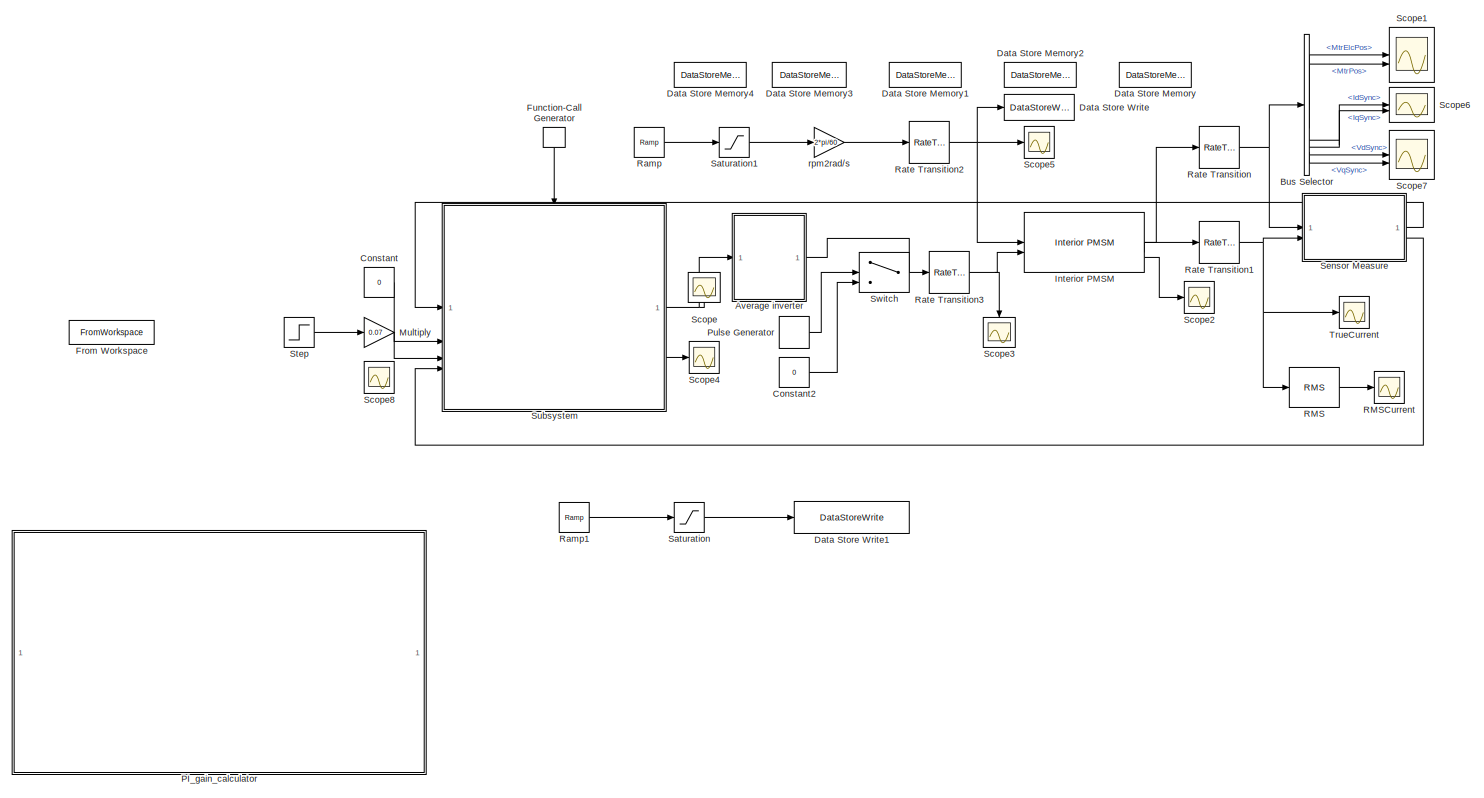
[diagram: root canvas - part 1/1, most of the canvas]
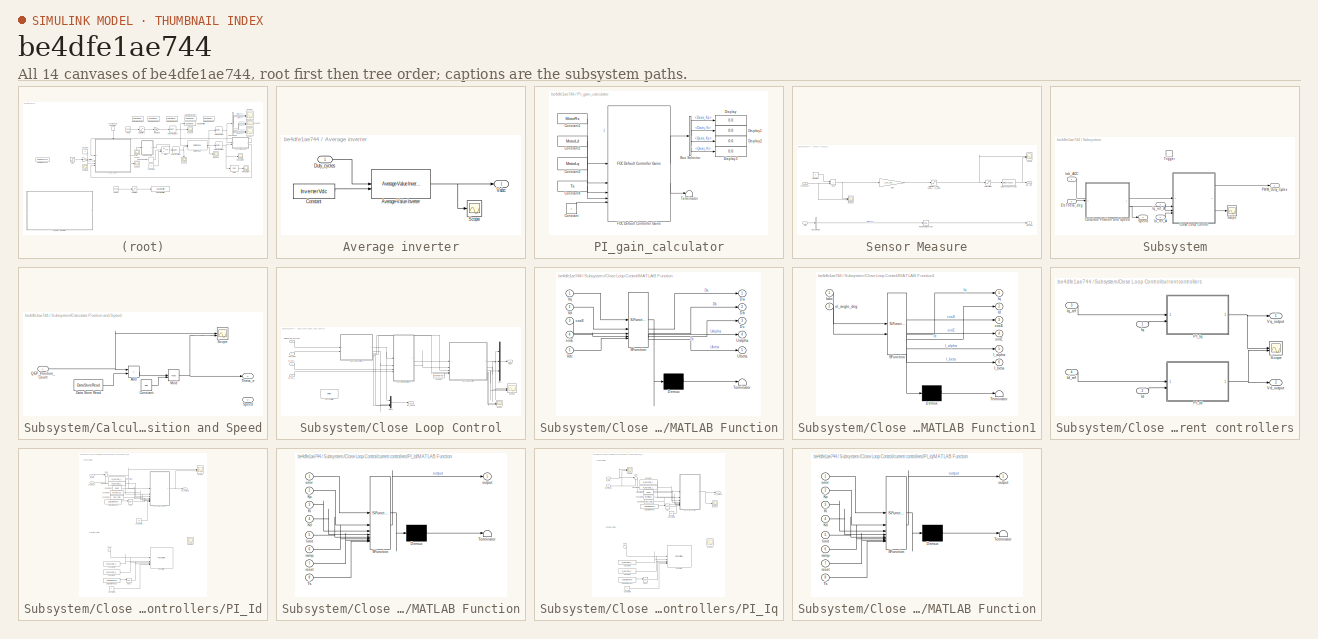
[diagram: thumbnail index - all 14 canvases of the model, root first then tree order]
MODEL slx_be4dfe1ae744
KIND model
CONFIG AbsTol = auto
CONFIG EnableMultiTasking = off
CONFIG FixedStep = auto
CONFIG MaxStep = auto
CONFIG MinStep = auto
CONFIG RelTol = 1e-3
CONFIG SampleTimeConstraint = Unconstrained
CONFIG SolverName = VariableStepAuto
CONFIG StartTime = 0.0
CONFIG StopTime = 5
WORKSPACE source: mxarray member
WORKSPACE CT_AmpersPerLSB = 0.0515718
WORKSPACE InverterVdc = 440
WORKSPACE Max_ADC_CNT = 4096
WORKSPACE MotorBaseCurrent = 70
WORKSPACE MotorKe = 43.834
WORKSPACE MotorLd = 0.000222
WORKSPACE MotorLq = 0.000355
WORKSPACE MotorPoles = 4
WORKSPACE MotorRs = 0.126
WORKSPACE PID_ramp = 1000
WORKSPACE PI_params_idKi = 1.5
WORKSPACE PI_params_idKp = 1.92
WORKSPACE PI_params_iqKi = 1.5
WORKSPACE PI_params_iqKp = 2.4
WORKSPACE Ts = 4.34782608696e-05
BLOCK [SubSystem] Average inverter
BLOCK [Reference] Average inverter/Average-Value Inverter  REF=mcbplantlib/Average-Value Inverter
  LibrarySourceBlock = mcblib/Electrical Systems/Inverters/Average-Value Inverter
  SourceBlock = mcbplantlib/Average-Value Inverter
  SourceType = Average Value Inverter
BLOCK [Constant] Average inverter/Constant
  Value = InverterVdc
BLOCK [Inport] Average inverter/Duty_cycles
BLOCK [Scope] Average inverter/Scope
  ActiveDisplayYMaximum = 350.5718291969751
  ActiveDisplayYMinimum = -313.23796592607141
  DataLoggingVariableName = ScopeData6
  Floating = off
  GraphicalSettings = {"AxesScalingProperties":{"AlignXAxis":"Center","AlignYAxis":"Center","AutoScaleXAxisLimits":false,"AxesScaling":"Manual","AxesScalingNumUpdates":10,"ExpandOnly":true,"ScaleAxesLimitsAtStop":false,"XAxisDataRange":100,"YAxisDataRange":80},"DisplayProperties":{"ColorOrder":["auto","auto","auto","auto","auto","auto","auto","auto","auto","auto","auto","auto","auto","auto","auto","auto","auto","auto",...<+2282ch>
  MultipleDisplayCache = [{"MaxYLimMag":301.12122860835427,"MaxYLimReal":350.5718291969751,"MinYLimMag":0,"MinYLimReal":-313.23796592607141,"PlotAsMagnitudePhase":false,"ShowGrid":true,"ShowLegend":false,"Title":"%<SignalLabel>","YLabel":""}]
  NumInputPorts = 1
  ScopeFrameLocation = window
  WasSavedAsWebScope = on
  WindowPosition = [1.000000,1.000000,1536.000000,937.000000,]
BLOCK [Outport] Average inverter/Vabc
BLOCK [BusSelector] Bus Selector
  OutputSignals = MtrElcPos,MtrPos,IdSync,IqSync,VdSync,VqSync
BLOCK [Constant] Constant
  Value = 0
BLOCK [Constant] Constant2
  Value = 0
BLOCK [DataStoreMemory] Data Store Memory
  DataStoreName = Enable
  InitialValue = true
  OutDataTypeStr = boolean
  ShowAdditionalParam = off
  WriteAfterWriteMsg = warning
BLOCK [DataStoreMemory] Data Store Memory1
  DataStoreName = IaOffset
  OutDataTypeStr = boolean
  ShowAdditionalParam = off
  WriteAfterWriteMsg = warning
BLOCK [DataStoreMemory] Data Store Memory2
  DataStoreName = IbOffset
  OutDataTypeStr = boolean
  ShowAdditionalParam = off
  WriteAfterWriteMsg = warning
BLOCK [DataStoreMemory] Data Store Memory3
  DataStoreName = zero_angle_offset
  InitialValue = 36
  ShowAdditionalParam = off
  WriteAfterWriteMsg = warning
BLOCK [DataStoreMemory] Data Store Memory4
  DataLogging = on
  DataStoreName = motorSpeed
  ShowAdditionalParam = off
  WriteAfterWriteMsg = warning
BLOCK [DataStoreWrite] Data Store Write
  DataStoreName = motorSpeed
  IndexOptions = Index vector (dialog)
  Indices = 1
  OutputSizes = 1
BLOCK [DataStoreWrite] Data Store Write1
  Commented = on
  DataStoreName = zero_angle_offset
  IndexOptions = Index vector (dialog)
  Indices = 1
  OutputSizes = 1
BLOCK [FromWorkspace] From Workspace
  SampleTime = 0.001
  VariableName = [LogFile_SkidPadHiL_TCon_TCoff_0825.Time LogFile_SkidPadHiL_TCon_TCoff_0825.RR_CTRL_TRQ_CMD]
BLOCK [FunctionCallGenerator] Function-Call Generator
  NameLocation = left
  SampleTime = Ts
BLOCK [Reference] Interior PMSM  REF=autolibpmsminterior/Interior PMSM
  LibrarySourceBlock = mcblib/Electrical Systems/Motors/Interior PMSM
  SourceBlock = autolibpmsminterior/Interior PMSM
  SourceType = Interior PMSM
BLOCK [Gain] Multiply
  Gain = 0.07
BLOCK [SubSystem] PI_gain_calculator
BLOCK [BusSelector] PI_gain_calculator/Bus Selector
  OutputSignals = Daxis_Kp,Daxis_Ki,Qaxis_Kp,Qaxis_Ki
BLOCK [Constant] PI_gain_calculator/Constant
BLOCK [Constant] PI_gain_calculator/Constant1
  Value = MotorRs
BLOCK [Constant] PI_gain_calculator/Constant2
  Value = MotorLd
BLOCK [Constant] PI_gain_calculator/Constant3
  Value = MotorLq
BLOCK [Constant] PI_gain_calculator/Constant4
  Value = Ts
  VectorParams1D = off
BLOCK [Display] PI_gain_calculator/Display
  Decimation = 1
BLOCK [Display] PI_gain_calculator/Display1
  Decimation = 1
BLOCK [Display] PI_gain_calculator/Display2
  Decimation = 1
BLOCK [Display] PI_gain_calculator/Display3
  Decimation = 1
BLOCK [Reference] PI_gain_calculator/FOC Default Controller Gains  REF=mcbcontrollergainlib/FOC Default Controller Gains
  LibrarySourceBlock = mcblib/Controls/Controllers/FOC Default Controller Gains
  SourceBlock = mcbcontrollergainlib/FOC Default Controller Gains
  SourceType = FOC Default Controller Gains
BLOCK [Terminator] PI_gain_calculator/Terminator
BLOCK [DiscretePulseGenerator] Pulse Generator
  Period = 0.01
  PulseType = Time based
  PulseWidth = 99.99
BLOCK [Reference] RMS  REF=spsRMSLib/RMS
  LibrarySourceBlock = sps_lib/Sensors and Measurements/RMS
  SourceBlock = spsRMSLib/RMS
  SourceType = RMS
BLOCK [Scope] RMSCurrent
  ActiveDisplayYMaximum = 1
  ActiveDisplayYMinimum = -1
  DataLoggingVariableName = ScopeData1
  Floating = off
  GraphicalSettings = {"Style":{"BackgroundColor":[0.12941176470588237,0.12941176470588237,0.12941176470588237],"AxesColor":[0.07058823529411765,0.07058823529411765,0.07058823529411765],"LabelsColor":[0.8509803921568627,0.8509803921568627,0.8509803921568627],"PreserveColors":false,"Visible":[true,true,true],"LineStyle":["-","-","-"],"LineWidth":[1.5,1.5,1.5],"BarWidth":[0.9,0.9,0.9],"LineColor":["auto","auto","auto"],"...<+2279ch>
  MultipleDisplayCache = [{"MaxYLimMag":1,"MaxYLimReal":1,"MinYLimMag":0,"MinYLimReal":-1,"PlotAsMagnitudePhase":false,"ShowGrid":true,"ShowLegend":true,"Title":"%<SignalLabel>","YLabel":""}]
  NumInputPorts = 1
  ScopeFrameLocation = window
  ShowLegend = on
  WasSavedAsWebScope = on
  WindowPosition = [1.000000,1.000000,1536.000000,937.000000,]
BLOCK [Reference] Ramp  REF=simulink/Sources/Ramp
  SourceBlock = simulink/Sources/Ramp
  SourceType = Ramp
BLOCK [Reference] Ramp1  REF=simulink/Sources/Ramp
  Commented = on
  SourceBlock = simulink/Sources/Ramp
  SourceType = Ramp
BLOCK [RateTransition] Rate Transition
BLOCK [RateTransition] Rate Transition1
BLOCK [RateTransition] Rate Transition2
BLOCK [RateTransition] Rate Transition3
BLOCK [Saturate] Saturation
  Commented = on
  LowerLimit = 0
  UpperLimit = 360
BLOCK [Saturate] Saturation1
  LowerLimit = 0
  UpperLimit = 600
BLOCK [Scope] Scope
  ActiveDisplayYMaximum = 0.847625387457883
  ActiveDisplayYMinimum = 0.15237461254211696
  Floating = off
  GraphicalSettings = {"Style":{"BackgroundColor":[0.12941176470588237,0.12941176470588237,0.12941176470588237],"AxesColor":[0.07058823529411765,0.07058823529411765,0.07058823529411765],"LabelsColor":[0.8509803921568627,0.8509803921568627,0.8509803921568627],"PreserveColors":false,"Visible":[true,true,true],"LineStyle":["-","-","-"],"LineWidth":[1.5,1.5,1.5],"BarWidth":[0.9,0.9,0.9],"LineColor":["auto","auto","auto"],"...<+2176ch>
  MultipleDisplayCache = [{"MaxYLimMag":0.847625387457883,"MaxYLimReal":0.847625387457883,"MinYLimMag":0.15237461254211696,"MinYLimReal":0.15237461254211696,"PlotAsMagnitudePhase":false,"ShowGrid":true,"ShowLegend":true,"Title":"%<SignalLabel>","YLabel":""}]
  NameLocation = left
  NumInputPorts = 1
  ScopeFrameLocation = window
  ShowLegend = on
  WasSavedAsWebScope = on
  WindowPosition = [0.000000,12.000000,1536.000000,937.000000,]
BLOCK [Scope] Scope1
  ActiveDisplayYMaximum = 1
  ActiveDisplayYMinimum = -1
  DataLoggingVariableName = ScopeData1
  Floating = off
  GraphicalSettings = {"Style":{"BackgroundColor":[0.12941176470588237,0.12941176470588237,0.12941176470588237],"AxesColor":[0.07058823529411765,0.07058823529411765,0.07058823529411765],"LabelsColor":[0.8509803921568627,0.8509803921568627,0.8509803921568627],"PreserveColors":false,"Visible":[true,true],"LineStyle":["-","-"],"LineWidth":[1.5,1.5],"BarWidth":[0.9,0.9],"LineColor":["auto","auto"],"LineFaceAlpha":[1,1],"Li...<+2532ch>
  MultipleDisplayCache = [{"MaxYLimMag":1,"MaxYLimReal":1,"MinYLimMag":0,"MinYLimReal":-1,"PlotAsMagnitudePhase":false,"ShowGrid":true,"ShowLegend":true,"Title":"%<SignalLabel>","YLabel":""}]
  NumInputPorts = 2
  ScopeFrameLocation = window
  ShowLegend = on
  WasSavedAsWebScope = on
  WindowPosition = [488.000000,270.000000,560.000000,420.000000,]
BLOCK [Scope] Scope2
  ActiveDisplayYMaximum = 14.201489134555768
  ActiveDisplayYMinimum = -45.081836654015575
  DataLoggingVariableName = ScopeData2
  Floating = off
  GraphicalSettings = {"Style":{"BackgroundColor":[0.12941176470588237,0.12941176470588237,0.12941176470588237],"AxesColor":[0.07058823529411765,0.07058823529411765,0.07058823529411765],"LabelsColor":[0.8509803921568627,0.8509803921568627,0.8509803921568627],"PreserveColors":false,"Visible":[true],"LineStyle":["-"],"LineWidth":[1.5],"BarWidth":[0.9],"LineColor":["auto"],"LineFaceAlpha":[1],"LineEdgeAlpha":[1],"Marker":...<+2409ch>
  MultipleDisplayCache = [{"MaxYLimMag":45.081836654015575,"MaxYLimReal":14.201489134555768,"MinYLimMag":0,"MinYLimReal":-45.081836654015575,"PlotAsMagnitudePhase":false,"ShowGrid":true,"ShowLegend":false,"Title":"%<SignalLabel>","YLabel":""}]
  NumInputPorts = 1
  ScopeFrameLocation = window
  WasSavedAsWebScope = on
  WindowPosition = [1.000000,1.000000,1536.000000,937.000000,]
BLOCK [Scope] Scope3
  ActiveDisplayYMaximum = 253.44594110211258
  ActiveDisplayYMinimum = -253.21724341215781
  DataLoggingVariableName = ScopeData3
  Floating = off
  GraphicalSettings = {"AxesScalingProperties":{"AlignXAxis":"Center","AlignYAxis":"Center","AutoScaleXAxisLimits":false,"AxesScaling":"Manual","AxesScalingNumUpdates":10,"ExpandOnly":true,"ScaleAxesLimitsAtStop":false,"XAxisDataRange":100,"YAxisDataRange":80},"DisplayProperties":{"ColorOrder":["auto","auto","auto","auto","auto","auto","auto","auto","auto","auto","auto","auto","auto","auto","auto","auto","auto","auto",...<+2304ch>
  MultipleDisplayCache = [{"MaxYLimMag":312.96957654507975,"MaxYLimReal":253.44594110211258,"MinYLimMag":0,"MinYLimReal":-253.21724341215781,"PlotAsMagnitudePhase":false,"ShowGrid":true,"ShowLegend":true,"Title":"%<SignalLabel>","YLabel":""}]
  NameLocation = left
  NumInputPorts = 1
  ScopeFrameLocation = window
  ShowLegend = on
  WasSavedAsWebScope = on
  WindowPosition = [1.000000,1.000000,1536.000000,937.000000,]
BLOCK [Scope] Scope4
  ActiveDisplayYMaximum = 1
  ActiveDisplayYMinimum = -1
  DataLoggingVariableName = ScopeData2
  Floating = off
  GraphicalSettings = {"Style":{"BackgroundColor":[0.12941176470588237,0.12941176470588237,0.12941176470588237],"AxesColor":[0.07058823529411765,0.07058823529411765,0.07058823529411765],"LabelsColor":[0.8509803921568627,0.8509803921568627,0.8509803921568627],"PreserveColors":false,"Visible":[true],"LineStyle":["-"],"LineWidth":[1.5],"BarWidth":[0.9],"LineColor":["auto"],"LineFaceAlpha":[1],"LineEdgeAlpha":[1],"Marker":...<+1906ch>
  MultipleDisplayCache = [{"MaxYLimMag":1,"MaxYLimReal":1,"MinYLimMag":0,"MinYLimReal":-1,"PlotAsMagnitudePhase":false,"ShowGrid":true,"ShowLegend":false,"Title":"%<SignalLabel>","YLabel":""}]
  NumInputPorts = 1
  ScopeFrameLocation = window
  WasSavedAsWebScope = on
  WindowPosition = [0.000000,12.000000,1536.000000,937.000000,]
BLOCK [Scope] Scope5
  ActiveDisplayYMaximum = 1
  ActiveDisplayYMinimum = -1
  DataLoggingVariableName = ScopeData9
  Floating = off
  GraphicalSettings = {"Style":{"BackgroundColor":[0.12941176470588237,0.12941176470588237,0.12941176470588237],"AxesColor":[0.07058823529411765,0.07058823529411765,0.07058823529411765],"LabelsColor":[0.8509803921568627,0.8509803921568627,0.8509803921568627],"PreserveColors":false,"Visible":[true],"LineStyle":["-"],"LineWidth":[1.5],"BarWidth":[0.9],"LineColor":["auto"],"LineFaceAlpha":[1],"LineEdgeAlpha":[1],"Marker":...<+2183ch>
  MultipleDisplayCache = [{"MaxYLimMag":1,"MaxYLimReal":1,"MinYLimMag":0,"MinYLimReal":-1,"PlotAsMagnitudePhase":false,"ShowGrid":true,"ShowLegend":false,"Title":"%<SignalLabel>","YLabel":""}]
  NumInputPorts = 1
  ScopeFrameLocation = window
  WasSavedAsWebScope = on
  WindowPosition = [488.000000,270.000000,560.000000,420.000000,]
BLOCK [Scope] Scope6
  DataLoggingVariableName = ScopeData1
  Floating = off
  GraphicalSettings = {"GraphicalSettings":{"LegacySettings":true,"Style":{"Style":{"CurrentConfiguration":"extmgr.ConfigurationSet","MinimizeControls":"false","PlotType":"Auto","Version":"2024b"}}}}
  NumInputPorts = 2
  WasSavedAsWebScope = on
BLOCK [Scope] Scope7
  ActiveDisplayYMaximum = 6.44112
  ActiveDisplayYMinimum = -0.8281
  DataLoggingVariableName = ScopeData2
  Floating = off
  GraphicalSettings = {"GraphicalSettings":{"LegacySettings":true,"Style":{"Style":{"AxesColor":"[0 0 0]","ChannelNames":[""],"ColorOrder":"[1 0.909803921568627 0.392156862745098;0.149019607843137 0.549019607843137 0.866666666666667;0.96078431372549 0.466666666666667 0.16078431372549;0.286274509803922 0.858823529411765 0.250980392156863;0.752941176470588 0.36078431372549 0.984313725490196;0.423529411764706 0.9568627450...<+435ch>
  MultipleDisplayCache = [{"MaxYLimMag":6.44112,"MaxYLimReal":6.44112,"MinYLimMag":0,"MinYLimReal":-0.8281,"PlotAsMagnitudePhase":false,"ShowGrid":true,"ShowLegend":false,"Title":"%<SignalLabel>","YLabel":""}]
  NumInputPorts = 2
  WasSavedAsWebScope = on
BLOCK [Scope] Scope8
  ActiveDisplayYMaximum = 1
  ActiveDisplayYMinimum = -1
  DataLoggingVariableName = ScopeData14
  Floating = off
  GraphicalSettings = {"Style":{"BackgroundColor":[0.12941176470588237,0.12941176470588237,0.12941176470588237],"AxesColor":[0.07058823529411765,0.07058823529411765,0.07058823529411765],"LabelsColor":[0.8509803921568627,0.8509803921568627,0.8509803921568627],"PreserveColors":false,"Visible":[true],"LineStyle":["-"],"LineWidth":[1.5],"BarWidth":[0.9],"LineColor":["auto"],"LineFaceAlpha":[1],"LineEdgeAlpha":[1],"Marker":...<+1910ch>
  MultipleDisplayCache = [{"MaxYLimMag":1,"MaxYLimReal":1,"MinYLimMag":0,"MinYLimReal":-1,"PlotAsMagnitudePhase":false,"ShowGrid":true,"ShowLegend":false,"Title":"%<SignalLabel>","YLabel":""}]
  NumInputPorts = 1
  ScopeFrameLocation = window
  WasSavedAsWebScope = on
  WindowPosition = [1.000000,1.000000,1536.000000,937.000000,]
BLOCK [SubSystem] Sensor Measure
BLOCK [Sum] Sensor Measure/Add1
  IconShape = rectangular
BLOCK [BusSelector] Sensor Measure/Bus Selector
  OutputSignals = MtrElcPos
BLOCK [Constant] Sensor Measure/Constant
  Value = 0
BLOCK [DataTypeConversion] Sensor Measure/Data Type Conversion
  OutDataTypeStr = int16
  RndMeth = Floor
  SaturateOnIntegerOverflow = off
BLOCK [Outport] Sensor Measure/EleTheta
  Port = 2
BLOCK [Gain] Sensor Measure/Gain
  Commented = through
  Gain = 1/CT_AmpersPerLSB
BLOCK [Outport] Sensor Measure/Iab_ADC
BLOCK [Saturate] Sensor Measure/Limit: -Max_ADC_CNT//2~Max_ADC_CNT//1
  Commented = through
  LowerLimit = -Max_ADC_CNT/2
  UpperLimit = Max_ADC_CNT/2
BLOCK [Inport] Sensor Measure/PhaseCurr
  Port = 2
BLOCK [Reference] Sensor Measure/Radians to Degrees  REF=simulink_extras/Transformations/Radians
to Degrees
  SourceBlock = simulink_extras/Transformations/Radians\nto Degrees
  SourceType = RadiansToDegrees
BLOCK [Saturate] Sensor Measure/Saturation1
  Commented = through
  LowerLimit = 0
  UpperLimit = Max_ADC_CNT
BLOCK [Scope] Sensor Measure/Scope
  ActiveDisplayYMaximum = 2388.3518252217932
  ActiveDisplayYMinimum = -2386.1587583821911
  DataLoggingVariableName = ScopeData1
  Floating = off
  GraphicalSettings = {"Style":{"BackgroundColor":[0.12941176470588237,0.12941176470588237,0.12941176470588237],"AxesColor":[0.07058823529411765,0.07058823529411765,0.07058823529411765],"LabelsColor":[0.8509803921568627,0.8509803921568627,0.8509803921568627],"PreserveColors":false,"Visible":[true,false,false,false,false,false],"LineStyle":["-","-","-","-","-","-"],"LineWidth":[1.5,1.5,1.5,1.5,1.5,1.5],"BarWidth":[0.9,0...<+2727ch>
  MultipleDisplayCache = [{"MaxYLimMag":2388.3518252217932,"MaxYLimReal":2388.3518252217932,"MinYLimMag":0,"MinYLimReal":-2386.1587583821911,"PlotAsMagnitudePhase":false,"ShowGrid":true,"ShowLegend":true,"Title":"%<SignalLabel>","YLabel":""}]
  NumInputPorts = 2
  ScopeFrameLocation = window
  ShowLegend = on
  WasSavedAsWebScope = on
  WindowPosition = [1.000000,1.000000,1536.000000,937.000000,]
BLOCK [Scope] Sensor Measure/Scope1
  ActiveDisplayYMaximum = 2418.5627534419714
  ActiveDisplayYMinimum = -2421.1249474633973
  DataLoggingVariableName = ScopeData1
  Floating = off
  GraphicalSettings = {"Style":{"BackgroundColor":[0.12941176470588237,0.12941176470588237,0.12941176470588237],"AxesColor":[0.07058823529411765,0.07058823529411765,0.07058823529411765],"LabelsColor":[0.8509803921568627,0.8509803921568627,0.8509803921568627],"PreserveColors":false,"Visible":[true,false,false,false,false,false],"LineStyle":["-","-","-","-","-","-"],"LineWidth":[1.5,1.5,1.5,1.5,1.5,1.5],"BarWidth":[0.9,0...<+2577ch>
  MultipleDisplayCache = [{"MaxYLimMag":2421.1249474633973,"MaxYLimReal":2418.5627534419714,"MinYLimMag":0,"MinYLimReal":-2421.1249474633973,"PlotAsMagnitudePhase":false,"ShowGrid":true,"ShowLegend":true,"Title":"%<SignalLabel>","YLabel":""}]
  NumInputPorts = 2
  ScopeFrameLocation = window
  ShowLegend = on
  WasSavedAsWebScope = on
  WindowPosition = [1.000000,1.000000,1536.000000,937.000000,]
BLOCK [Inport] Sensor Measure/info
BLOCK [Step] Step
  After = 1000
  SampleTime = 0
  Time = 0.2
BLOCK [SubSystem] Subsystem
BLOCK [SubSystem] Subsystem/Calculate Position and Speed
BLOCK [Sum] Subsystem/Calculate Position and Speed/Add
  IconShape = rectangular
BLOCK [Constant] Subsystem/Calculate Position and Speed/Constant
  Value = 360
BLOCK [DataStoreRead] Subsystem/Calculate Position and Speed/Data Store Read
  DataStoreName = zero_angle_offset
  IndexOptions = Index vector (dialog)
  Indices = 1
  OutputSizes = 1
BLOCK [Math] Subsystem/Calculate Position and Speed/Mod
  Operator = mod
BLOCK [Inport] Subsystem/Calculate Position and Speed/QEP_Position_Count
BLOCK [Scope] Subsystem/Calculate Position and Speed/Scope
  ActiveDisplayYMaximum = 1
  ActiveDisplayYMinimum = -1
  DataLoggingVariableName = ScopeData1
  Floating = off
  GraphicalSettings = {"Style":{"BackgroundColor":[0.12941176470588237,0.12941176470588237,0.12941176470588237],"AxesColor":[0.07058823529411765,0.07058823529411765,0.07058823529411765],"LabelsColor":[0.8509803921568627,0.8509803921568627,0.8509803921568627],"PreserveColors":false,"Visible":[true,true],"LineStyle":["-","-"],"LineWidth":[1.5,1.5],"BarWidth":[0.9,0.9],"LineColor":["auto","auto"],"LineFaceAlpha":[1,1],"Li...<+2027ch>
  MultipleDisplayCache = [{"MaxYLimMag":1,"MaxYLimReal":1,"MinYLimMag":0,"MinYLimReal":-1,"PlotAsMagnitudePhase":false,"ShowGrid":true,"ShowLegend":false,"Title":"%<SignalLabel>","YLabel":""}]
  NumInputPorts = 2
  ScopeFrameLocation = window
  WasSavedAsWebScope = on
  WindowPosition = [488.000000,270.000000,560.000000,420.000000,]
BLOCK [Outport] Subsystem/Calculate Position and Speed/Speed
  Port = 2
BLOCK [Outport] Subsystem/Calculate Position and Speed/Theta_e
BLOCK [SubSystem] Subsystem/Close Loop Control
BLOCK [Constant] Subsystem/Close Loop Control/Constant
  Value = InverterVdc
BLOCK [Outport] Subsystem/Close Loop Control/Dabc
BLOCK [Inport] Subsystem/Close Loop Control/Id_ref_A
  Port = 4
BLOCK [Outport] Subsystem/Close Loop Control/Idq_debug
  Port = 2
BLOCK [Inport] Subsystem/Close Loop Control/Iq_ref_A
  Port = 3
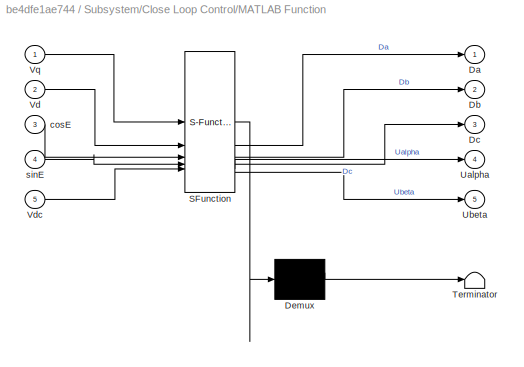
BLOCK [SubSystem] Subsystem/Close Loop Control/MATLAB Function
  ErrorFcn = Stateflow.Translate.translate
  PermitHierarchicalResolution = ExplicitOnly
  SFBlockType = MATLAB Function
  TreatAsAtomicUnit = on
BLOCK [Demux] Subsystem/Close Loop Control/MATLAB Function/ Demux 
  Outputs = 1
BLOCK [S-Function] Subsystem/Close Loop Control/MATLAB Function/ SFunction 
  EnableBusSupport = off
  FunctionName = sf_sfun
  PortCounts = [5 6]
  SFcnIsStateOwnerBlock = off
  SFunctionDeploymentMode = off
  Tag = Stateflow S-Function 4
BLOCK [Terminator] Subsystem/Close Loop Control/MATLAB Function/ Terminator 
BLOCK [Outport] Subsystem/Close Loop Control/MATLAB Function/Da
BLOCK [Outport] Subsystem/Close Loop Control/MATLAB Function/Db
  Port = 2
BLOCK [Outport] Subsystem/Close Loop Control/MATLAB Function/Dc
  Port = 3
BLOCK [Outport] Subsystem/Close Loop Control/MATLAB Function/Ualpha
  Port = 4
BLOCK [Outport] Subsystem/Close Loop Control/MATLAB Function/Ubeta
  Port = 5
BLOCK [Inport] Subsystem/Close Loop Control/MATLAB Function/Vd
  Port = 2
BLOCK [Inport] Subsystem/Close Loop Control/MATLAB Function/Vdc
  Port = 5
BLOCK [Inport] Subsystem/Close Loop Control/MATLAB Function/Vq
BLOCK [Inport] Subsystem/Close Loop Control/MATLAB Function/cosE
  Port = 3
BLOCK [Inport] Subsystem/Close Loop Control/MATLAB Function/sinE
  Port = 4
BLOCK [SubSystem] Subsystem/Close Loop Control/MATLAB Function1
  ErrorFcn = Stateflow.Translate.translate
  PermitHierarchicalResolution = ExplicitOnly
  SFBlockType = MATLAB Function
  TreatAsAtomicUnit = on
BLOCK [Demux] Subsystem/Close Loop Control/MATLAB Function1/ Demux 
  Outputs = 1
BLOCK [S-Function] Subsystem/Close Loop Control/MATLAB Function1/ SFunction 
  EnableBusSupport = off
  FunctionName = sf_sfun
  PortCounts = [2 7]
  SFcnIsStateOwnerBlock = off
  SFunctionDeploymentMode = off
  Tag = Stateflow S-Function 1
BLOCK [Terminator] Subsystem/Close Loop Control/MATLAB Function1/ Terminator 
BLOCK [Outport] Subsystem/Close Loop Control/MATLAB Function1/I_alpha
  Port = 5
BLOCK [Outport] Subsystem/Close Loop Control/MATLAB Function1/I_beta
  Port = 6
BLOCK [Inport] Subsystem/Close Loop Control/MATLAB Function1/Iabc
BLOCK [Outport] Subsystem/Close Loop Control/MATLAB Function1/Id
  Port = 2
BLOCK [Outport] Subsystem/Close Loop Control/MATLAB Function1/Iq
BLOCK [Outport] Subsystem/Close Loop Control/MATLAB Function1/cosE
  Port = 3
BLOCK [Inport] Subsystem/Close Loop Control/MATLAB Function1/el_angle_deg
  Port = 2
BLOCK [Outport] Subsystem/Close Loop Control/MATLAB Function1/sinE
  Port = 4
BLOCK [Mux] Subsystem/Close Loop Control/Mux
  DisplayOption = bar
  Inputs = 3
BLOCK [Mux] Subsystem/Close Loop Control/Mux1
  DisplayOption = bar
BLOCK [Inport] Subsystem/Close Loop Control/Pos_deg
  Port = 2
BLOCK [Scope] Subsystem/Close Loop Control/Scope
  ActiveDisplayYMaximum = 1
  ActiveDisplayYMinimum = -1
  DataLoggingVariableName = ScopeData11
  Floating = off
  GraphicalSettings = {"Style":{"BackgroundColor":[0.12941176470588237,0.12941176470588237,0.12941176470588237],"AxesColor":[0.07058823529411765,0.07058823529411765,0.07058823529411765],"LabelsColor":[0.8509803921568627,0.8509803921568627,0.8509803921568627],"PreserveColors":false,"Visible":[true,true],"LineStyle":["-","-"],"LineWidth":[1.5,1.5],"BarWidth":[0.9,0.9],"LineColor":["auto","auto"],"LineFaceAlpha":[1,1],"Li...<+2171ch>
  MultipleDisplayCache = [{"MaxYLimMag":1,"MaxYLimReal":1,"MinYLimMag":0,"MinYLimReal":-1,"PlotAsMagnitudePhase":false,"ShowGrid":true,"ShowLegend":true,"Title":"%<SignalLabel>","YLabel":""}]
  NumInputPorts = 2
  ScopeFrameLocation = window
  ShowLegend = on
  WasSavedAsWebScope = on
  WindowPosition = [1.000000,1.000000,1536.000000,937.000000,]
BLOCK [Scope] Subsystem/Close Loop Control/Scope1
  ActiveDisplayYMaximum = 1.125
  ActiveDisplayYMinimum = -0.12499999999999997
  DataLoggingVariableName = ScopeData1
  Floating = off
  GraphicalSettings = {"AxesScalingProperties":{"AlignXAxis":"Center","AlignYAxis":"Center","AutoScaleXAxisLimits":false,"AxesScaling":"Manual","AxesScalingNumUpdates":10,"ExpandOnly":true,"ScaleAxesLimitsAtStop":false,"XAxisDataRange":100,"YAxisDataRange":80},"DisplayProperties":{"ColorOrder":["auto","auto","auto","auto","auto","auto","auto","auto","auto","auto","auto","auto","auto","auto","auto","auto","auto","auto",...<+2284ch>
  MultipleDisplayCache = [{"MaxYLimMag":1.125,"MaxYLimReal":1.125,"MinYLimMag":0,"MinYLimReal":-0.12499999999999997,"PlotAsMagnitudePhase":false,"ShowGrid":true,"ShowLegend":false,"Title":"%<SignalLabel>","YLabel":""}]
  NumInputPorts = 3
  ScopeFrameLocation = window
  WasSavedAsWebScope = on
  WindowPosition = [1.000000,1.000000,1536.000000,937.000000,]
BLOCK [Reference] Subsystem/Close Loop Control/current Filter  REF=mcbhdlcontrolslib/IIR Filter
  LibrarySourceBlock = mcbhdllib/Signal Management/IIR Filter
  SourceBlock = mcbhdlcontrolslib/IIR Filter
  SourceType = IIR Filter
BLOCK [SubSystem] Subsystem/Close Loop Control/current controllers
BLOCK [Inport] Subsystem/Close Loop Control/current controllers/Id
  Port = 2
BLOCK [Inport] Subsystem/Close Loop Control/current controllers/Id_ref
  Port = 4
BLOCK [Inport] Subsystem/Close Loop Control/current controllers/Iq
BLOCK [Inport] Subsystem/Close Loop Control/current controllers/Iq_ref
  Port = 3
BLOCK [SubSystem] Subsystem/Close Loop Control/current controllers/PI_Id
BLOCK [Constant] Subsystem/Close Loop Control/current controllers/PI_Id/Constant
  Value = PI_params_idKp
BLOCK [Constant] Subsystem/Close Loop Control/current controllers/PI_Id/Constant1
  Value = PI_params_idKi*Ts
BLOCK [Constant] Subsystem/Close Loop Control/current controllers/PI_Id/Constant2
  Value = 0.002
BLOCK [Constant] Subsystem/Close Loop Control/current controllers/PI_Id/Constant3
  Value = InverterVdc
BLOCK [Constant] Subsystem/Close Loop Control/current controllers/PI_Id/Constant4
  Value = PID_ramp
BLOCK [Constant] Subsystem/Close Loop Control/current controllers/PI_Id/Constant5
  Value = Ts
BLOCK [Constant] Subsystem/Close Loop Control/current controllers/PI_Id/Constant6
  Commented = on
  Value = PI_params_idKp
BLOCK [Constant] Subsystem/Close Loop Control/current controllers/PI_Id/Constant7
  Commented = on
  Value = PI_params_idKi*Ts
BLOCK [Constant] Subsystem/Close Loop Control/current controllers/PI_Id/Constant8
  Commented = on
  Value = 0
BLOCK [DataStoreRead] Subsystem/Close Loop Control/current controllers/PI_Id/Data Store Read
  DataStoreName = Enable
  IndexOptions = Index vector (dialog)
  Indices = 1
  OutputSizes = 1
BLOCK [DataStoreRead] Subsystem/Close Loop Control/current controllers/PI_Id/Data Store Read1
  Commented = on
  DataStoreName = Enable
  IndexOptions = Index vector (dialog)
  Indices = 1
  OutputSizes = 1
BLOCK [Inport] Subsystem/Close Loop Control/current controllers/PI_Id/Id_meas1
  Port = 2
BLOCK [Inport] Subsystem/Close Loop Control/current controllers/PI_Id/Id_ref1
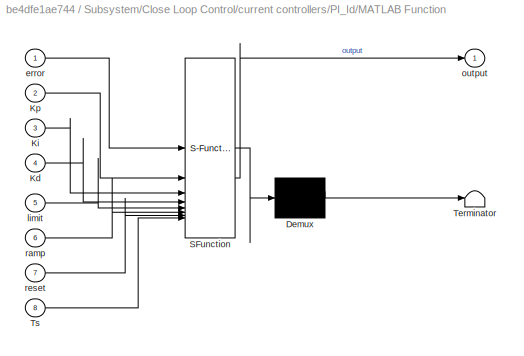
BLOCK [SubSystem] Subsystem/Close Loop Control/current controllers/PI_Id/MATLAB Function
  ErrorFcn = Stateflow.Translate.translate
  PermitHierarchicalResolution = ExplicitOnly
  SFBlockType = MATLAB Function
  TreatAsAtomicUnit = on
BLOCK [Demux] Subsystem/Close Loop Control/current controllers/PI_Id/MATLAB Function/ Demux 
  Outputs = 1
BLOCK [S-Function] Subsystem/Close Loop Control/current controllers/PI_Id/MATLAB Function/ SFunction 
  EnableBusSupport = off
  FunctionName = sf_sfun
  PortCounts = [8 2]
  SFcnIsStateOwnerBlock = off
  SFunctionDeploymentMode = off
  Tag = Stateflow S-Function 3
BLOCK [Terminator] Subsystem/Close Loop Control/current controllers/PI_Id/MATLAB Function/ Terminator 
BLOCK [Inport] Subsystem/Close Loop Control/current controllers/PI_Id/MATLAB Function/Kd
  Port = 4
BLOCK [Inport] Subsystem/Close Loop Control/current controllers/PI_Id/MATLAB Function/Ki
  Port = 3
BLOCK [Inport] Subsystem/Close Loop Control/current controllers/PI_Id/MATLAB Function/Kp
  Port = 2
BLOCK [Inport] Subsystem/Close Loop Control/current controllers/PI_Id/MATLAB Function/Ts
  Port = 8
BLOCK [Inport] Subsystem/Close Loop Control/current controllers/PI_Id/MATLAB Function/error
BLOCK [Inport] Subsystem/Close Loop Control/current controllers/PI_Id/MATLAB Function/limit
  Port = 5
BLOCK [Outport] Subsystem/Close Loop Control/current controllers/PI_Id/MATLAB Function/output
BLOCK [Inport] Subsystem/Close Loop Control/current controllers/PI_Id/MATLAB Function/ramp
  Port = 6
BLOCK [Inport] Subsystem/Close Loop Control/current controllers/PI_Id/MATLAB Function/reset
  Port = 7
BLOCK [Logic] Subsystem/Close Loop Control/current controllers/PI_Id/NOT
  AllPortsSameDT = off
  IconShape = distinctive
  Operator = NOT
  OutDataTypeStr = boolean
BLOCK [Logic] Subsystem/Close Loop Control/current controllers/PI_Id/NOT1
  AllPortsSameDT = off
  Commented = on
  IconShape = distinctive
  Operator = NOT
  OutDataTypeStr = boolean
BLOCK [Reference] Subsystem/Close Loop Control/current controllers/PI_Id/PI Controller  REF=slpidlib/PID Controller
  Commented = on
  SourceBlock = slpidlib/PID Controller
  SourceType = PID 1dof
BLOCK [Scope] Subsystem/Close Loop Control/current controllers/PI_Id/Scope
  ActiveDisplayYMaximum = 8.44652038043029
  ActiveDisplayYMinimum = -4.2718355978255875
  DataLoggingVariableName = ScopeData10
  Floating = off
  GraphicalSettings = {"Style":{"BackgroundColor":[0.12941176470588237,0.12941176470588237,0.12941176470588237],"AxesColor":[0.07058823529411765,0.07058823529411765,0.07058823529411765],"LabelsColor":[0.8509803921568627,0.8509803921568627,0.8509803921568627],"PreserveColors":false,"Visible":[true,true],"LineStyle":["-","-"],"LineWidth":[1.5,1.5],"BarWidth":[0.9,0.9],"LineColor":["auto","auto"],"LineFaceAlpha":[1,1],"Li...<+2032ch>
  MultipleDisplayCache = [{"MaxYLimMag":8.44652038043029,"MaxYLimReal":8.44652038043029,"MinYLimMag":0,"MinYLimReal":-4.2718355978255875,"PlotAsMagnitudePhase":false,"ShowGrid":true,"ShowLegend":true,"Title":"%<SignalLabel>","YLabel":""}]
  NumInputPorts = 2
  ScopeFrameLocation = window
  ShowLegend = on
  WasSavedAsWebScope = on
  WindowPosition = [1.000000,1.000000,1536.000000,937.000000,]
BLOCK [Scope] Subsystem/Close Loop Control/current controllers/PI_Id/Scope1
  ActiveDisplayYMaximum = 1
  ActiveDisplayYMinimum = -1
  Commented = on
  DataLoggingVariableName = ScopeData15
  Floating = off
  GraphicalSettings = {"Style":{"BackgroundColor":[0.12941176470588237,0.12941176470588237,0.12941176470588237],"AxesColor":[0.07058823529411765,0.07058823529411765,0.07058823529411765],"LabelsColor":[0.8509803921568627,0.8509803921568627,0.8509803921568627],"PreserveColors":false,"Visible":[true,true,true],"LineStyle":["-","-","-"],"LineWidth":[1.5,1.5,1.5],"BarWidth":[0.9,0.9,0.9],"LineColor":["auto","auto","auto"],"...<+2131ch>
  MultipleDisplayCache = [{"MaxYLimMag":1,"MaxYLimReal":1,"MinYLimMag":0,"MinYLimReal":-1,"PlotAsMagnitudePhase":false,"ShowGrid":true,"ShowLegend":true,"Title":"%<SignalLabel>","YLabel":""}]
  NumInputPorts = 3
  ScopeFrameLocation = window
  ShowLegend = on
  WasSavedAsWebScope = on
  WindowPosition = [1.000000,1.000000,1536.000000,937.000000,]
BLOCK [Sum] Subsystem/Close Loop Control/current controllers/PI_Id/Sum
  Inputs = |+-
BLOCK [Sum] Subsystem/Close Loop Control/current controllers/PI_Id/Sum1
  Commented = on
  Inputs = |+-
BLOCK [Outport] Subsystem/Close Loop Control/current controllers/PI_Id/Vd_output1
BLOCK [SubSystem] Subsystem/Close Loop Control/current controllers/PI_Iq
BLOCK [Constant] Subsystem/Close Loop Control/current controllers/PI_Iq/Constant
  Value = PI_params_iqKp
BLOCK [Constant] Subsystem/Close Loop Control/current controllers/PI_Iq/Constant1
  Value = PI_params_iqKi
BLOCK [Constant] Subsystem/Close Loop Control/current controllers/PI_Iq/Constant2
  Value = 0.002
BLOCK [Constant] Subsystem/Close Loop Control/current controllers/PI_Iq/Constant3
  Value = InverterVdc
BLOCK [Constant] Subsystem/Close Loop Control/current controllers/PI_Iq/Constant4
  Value = PID_ramp
BLOCK [Constant] Subsystem/Close Loop Control/current controllers/PI_Iq/Constant5
  Value = Ts
BLOCK [Constant] Subsystem/Close Loop Control/current controllers/PI_Iq/Constant6
  Commented = on
  Value = PI_params_iqKp
BLOCK [Constant] Subsystem/Close Loop Control/current controllers/PI_Iq/Constant7
  Commented = on
  Value = PI_params_iqKi*Ts
BLOCK [Constant] Subsystem/Close Loop Control/current controllers/PI_Iq/Constant8
  Commented = on
  Value = 0
BLOCK [DataStoreRead] Subsystem/Close Loop Control/current controllers/PI_Iq/Data Store Read
  DataStoreName = Enable
  IndexOptions = Index vector (dialog)
  Indices = 1
  OutputSizes = 1
BLOCK [DataStoreRead] Subsystem/Close Loop Control/current controllers/PI_Iq/Data Store Read1
  Commented = on
  DataStoreName = Enable
  IndexOptions = Index vector (dialog)
  Indices = 1
  OutputSizes = 1
BLOCK [Inport] Subsystem/Close Loop Control/current controllers/PI_Iq/Iq_meas1
  Port = 2
BLOCK [Inport] Subsystem/Close Loop Control/current controllers/PI_Iq/Iq_ref1
BLOCK [SubSystem] Subsystem/Close Loop Control/current controllers/PI_Iq/MATLAB Function
  ErrorFcn = Stateflow.Translate.translate
  PermitHierarchicalResolution = ExplicitOnly
  SFBlockType = MATLAB Function
  TreatAsAtomicUnit = on
BLOCK [Demux] Subsystem/Close Loop Control/current controllers/PI_Iq/MATLAB Function/ Demux 
  Outputs = 1
BLOCK [S-Function] Subsystem/Close Loop Control/current controllers/PI_Iq/MATLAB Function/ SFunction 
  EnableBusSupport = off
  FunctionName = sf_sfun
  PortCounts = [8 2]
  SFcnIsStateOwnerBlock = off
  SFunctionDeploymentMode = off
  Tag = Stateflow S-Function 2
BLOCK [Terminator] Subsystem/Close Loop Control/current controllers/PI_Iq/MATLAB Function/ Terminator 
BLOCK [Inport] Subsystem/Close Loop Control/current controllers/PI_Iq/MATLAB Function/Kd
  Port = 4
BLOCK [Inport] Subsystem/Close Loop Control/current controllers/PI_Iq/MATLAB Function/Ki
  Port = 3
BLOCK [Inport] Subsystem/Close Loop Control/current controllers/PI_Iq/MATLAB Function/Kp
  Port = 2
BLOCK [Inport] Subsystem/Close Loop Control/current controllers/PI_Iq/MATLAB Function/Ts
  Port = 8
BLOCK [Inport] Subsystem/Close Loop Control/current controllers/PI_Iq/MATLAB Function/error
BLOCK [Inport] Subsystem/Close Loop Control/current controllers/PI_Iq/MATLAB Function/limit
  Port = 5
BLOCK [Outport] Subsystem/Close Loop Control/current controllers/PI_Iq/MATLAB Function/output
BLOCK [Inport] Subsystem/Close Loop Control/current controllers/PI_Iq/MATLAB Function/ramp
  Port = 6
BLOCK [Inport] Subsystem/Close Loop Control/current controllers/PI_Iq/MATLAB Function/reset
  Port = 7
BLOCK [Logic] Subsystem/Close Loop Control/current controllers/PI_Iq/NOT
  AllPortsSameDT = off
  IconShape = distinctive
  Operator = NOT
  OutDataTypeStr = boolean
BLOCK [Logic] Subsystem/Close Loop Control/current controllers/PI_Iq/NOT1
  AllPortsSameDT = off
  Commented = on
  IconShape = distinctive
  Operator = NOT
  OutDataTypeStr = boolean
BLOCK [Reference] Subsystem/Close Loop Control/current controllers/PI_Iq/PI Controller  REF=slpidlib/PID Controller
  Commented = on
  LibrarySourceBlock = mcblib/Controls/Controllers/PI Controller
  SourceBlock = slpidlib/PID Controller
  SourceType = PID 1dof
BLOCK [Scope] Subsystem/Close Loop Control/current controllers/PI_Iq/Scope
  ActiveDisplayYMaximum = 81
  ActiveDisplayYMinimum = -8.9999999999999982
  DataLoggingVariableName = ScopeData4
  Floating = off
  GraphicalSettings = {"Style":{"BackgroundColor":[0.12941176470588237,0.12941176470588237,0.12941176470588237],"AxesColor":[0.07058823529411765,0.07058823529411765,0.07058823529411765],"LabelsColor":[0.8509803921568627,0.8509803921568627,0.8509803921568627],"PreserveColors":false,"Visible":[true,true],"LineStyle":["-","-"],"LineWidth":[1.5,1.5],"BarWidth":[0.9,0.9],"LineColor":["auto","auto"],"LineFaceAlpha":[1,1],"Li...<+2090ch>
  MultipleDisplayCache = [{"MaxYLimMag":81,"MaxYLimReal":81,"MinYLimMag":0,"MinYLimReal":-8.9999999999999982,"PlotAsMagnitudePhase":false,"ShowGrid":true,"ShowLegend":true,"Title":"%<SignalLabel>","YLabel":""}]
  NumInputPorts = 2
  ScopeFrameLocation = window
  ShowLegend = on
  WasSavedAsWebScope = on
  WindowPosition = [1.000000,1.000000,1536.000000,937.000000,]
BLOCK [Scope] Subsystem/Close Loop Control/current controllers/PI_Iq/Scope1
  ActiveDisplayYMaximum = 1
  ActiveDisplayYMinimum = -1
  DataLoggingVariableName = ScopeData5
  Floating = off
  GraphicalSettings = {"Style":{"BackgroundColor":[0.12941176470588237,0.12941176470588237,0.12941176470588237],"AxesColor":[0.07058823529411765,0.07058823529411765,0.07058823529411765],"LabelsColor":[0.8509803921568627,0.8509803921568627,0.8509803921568627],"PreserveColors":false,"Visible":[true],"LineStyle":["-"],"LineWidth":[1.5],"BarWidth":[0.9],"LineColor":["auto"],"LineFaceAlpha":[1],"LineEdgeAlpha":[1],"Marker":...<+1948ch>
  MultipleDisplayCache = [{"MaxYLimMag":1,"MaxYLimReal":1,"MinYLimMag":0,"MinYLimReal":-1,"PlotAsMagnitudePhase":false,"ShowGrid":true,"ShowLegend":false,"Title":"%<SignalLabel>","YLabel":""}]
  NumInputPorts = 1
  ScopeFrameLocation = window
  WasSavedAsWebScope = on
  WindowPosition = [488.000000,270.000000,560.000000,420.000000,]
BLOCK [Scope] Subsystem/Close Loop Control/current controllers/PI_Iq/Scope2
  ActiveDisplayYMaximum = 10.583720930232559
  ActiveDisplayYMinimum = -1.819404069767443
  Commented = on
  DataLoggingVariableName = ScopeData13
  Floating = off
  GraphicalSettings = {"AxesScalingProperties":{"AlignXAxis":"Center","AlignYAxis":"Center","AutoScaleXAxisLimits":false,"AxesScaling":"Manual","AxesScalingNumUpdates":10,"ExpandOnly":true,"ScaleAxesLimitsAtStop":false,"XAxisDataRange":100,"YAxisDataRange":80},"DisplayProperties":{"ColorOrder":["auto","auto","auto","auto","auto","auto","auto","auto","auto","auto","auto","auto","auto","auto","auto","auto","auto","auto",...<+2075ch>
  MultipleDisplayCache = [{"MaxYLimMag":10.125,"MaxYLimReal":10.583720930232559,"MinYLimMag":0,"MinYLimReal":-1.819404069767443,"PlotAsMagnitudePhase":false,"ShowGrid":true,"ShowLegend":true,"Title":"%<SignalLabel>","YLabel":""}]
  NumInputPorts = 2
  ScopeFrameLocation = window
  ShowLegend = on
  WasSavedAsWebScope = on
  WindowPosition = [0.000000,12.000000,1536.000000,937.000000,]
BLOCK [Sum] Subsystem/Close Loop Control/current controllers/PI_Iq/Sum
  Inputs = |+-
BLOCK [Sum] Subsystem/Close Loop Control/current controllers/PI_Iq/Sum1
  Commented = on
  Inputs = |+-
BLOCK [Outport] Subsystem/Close Loop Control/current controllers/PI_Iq/Vq_output1
BLOCK [Scope] Subsystem/Close Loop Control/current controllers/Scope
  ActiveDisplayYMaximum = 1
  ActiveDisplayYMinimum = -1
  DataLoggingVariableName = ScopeData12
  Floating = off
  GraphicalSettings = {"Style":{"BackgroundColor":[0.12941176470588237,0.12941176470588237,0.12941176470588237],"AxesColor":[0.07058823529411765,0.07058823529411765,0.07058823529411765],"LabelsColor":[0.8509803921568627,0.8509803921568627,0.8509803921568627],"PreserveColors":false,"Visible":[true,true],"LineStyle":["-","-"],"LineWidth":[1.5,1.5],"BarWidth":[0.9,0.9],"LineColor":["auto","auto"],"LineFaceAlpha":[1,1],"Li...<+2003ch>
  MultipleDisplayCache = [{"MaxYLimMag":1,"MaxYLimReal":1,"MinYLimMag":0,"MinYLimReal":-1,"PlotAsMagnitudePhase":false,"ShowGrid":true,"ShowLegend":true,"Title":"%<SignalLabel>","YLabel":""}]
  NumInputPorts = 2
  ScopeFrameLocation = window
  ShowLegend = on
  WasSavedAsWebScope = on
  WindowPosition = [1.000000,1.000000,1536.000000,937.000000,]
BLOCK [Outport] Subsystem/Close Loop Control/current controllers/Vd_output
  Port = 2
BLOCK [Outport] Subsystem/Close Loop Control/current controllers/Vq_output
BLOCK [Inport] Subsystem/Close Loop Control/measured_current
BLOCK [Inport] Subsystem/EleTheta_deg
  Port = 4
BLOCK [Inport] Subsystem/Iab_ADC
BLOCK [Inport] Subsystem/Id_ref_A
  Port = 2
BLOCK [Inport] Subsystem/Iq_ref_A
  Port = 3
BLOCK [Outport] Subsystem/PWM_Duty_Cycles
BLOCK [Scope] Subsystem/Scope
  ActiveDisplayYMaximum = 1
  ActiveDisplayYMinimum = -1
  DataLoggingVariableName = ScopeData8
  Floating = off
  GraphicalSettings = {"Style":{"BackgroundColor":[0.12941176470588237,0.12941176470588237,0.12941176470588237],"AxesColor":[0.07058823529411765,0.07058823529411765,0.07058823529411765],"LabelsColor":[0.8509803921568627,0.8509803921568627,0.8509803921568627],"PreserveColors":false,"Visible":[true,true,true,true],"LineStyle":["-","-","-","-"],"LineWidth":[1.5,1.5,1.5,1.5],"BarWidth":[0.9,0.9,0.9,0.9],"LineColor":["auto"...<+2716ch>
  MultipleDisplayCache = [{"MaxYLimMag":1,"MaxYLimReal":1,"MinYLimMag":0,"MinYLimReal":-1,"PlotAsMagnitudePhase":false,"ShowGrid":true,"ShowLegend":true,"Title":"%<SignalLabel>","YLabel":""}]
  NumInputPorts = 1
  ScopeFrameLocation = window
  ShowLegend = on
  WasSavedAsWebScope = on
  WindowPosition = [1.000000,1.000000,1536.000000,937.000000,]
BLOCK [Outport] Subsystem/Speed
  Port = 2
BLOCK [TriggerPort] Subsystem/Trigger
  PortDimensions = 1
  StatesWhenEnabling = held
  TriggerType = function-call
  VariantControl = (inherit)
BLOCK [Switch] Switch
  Commented = on
  Criteria = u2 > Threshold
  InputSameDT = off
  SaturateOnIntegerOverflow = off
  Threshold = 0.5
BLOCK [Scope] TrueCurrent
  ActiveDisplayYMaximum = 87.028426331999526
  ActiveDisplayYMinimum = -87.035051528006122
  DataLoggingVariableName = ScopeData7
  Floating = off
  GraphicalSettings = {"Style":{"BackgroundColor":[0.12941176470588237,0.12941176470588237,0.12941176470588237],"AxesColor":[0.07058823529411765,0.07058823529411765,0.07058823529411765],"LabelsColor":[0.8509803921568627,0.8509803921568627,0.8509803921568627],"PreserveColors":false,"Visible":[true,true,true],"LineStyle":["-","-","-"],"LineWidth":[1.5,1.5,1.5],"BarWidth":[0.9,0.9,0.9],"LineColor":["auto","auto","auto"],"...<+2568ch>
  MultipleDisplayCache = [{"MaxYLimMag":87.035051528006122,"MaxYLimReal":87.028426331999526,"MinYLimMag":0,"MinYLimReal":-87.035051528006122,"PlotAsMagnitudePhase":false,"ShowGrid":true,"ShowLegend":true,"Title":"%<SignalLabel>","YLabel":""}]
  NumInputPorts = 1
  ScopeFrameLocation = window
  ShowLegend = on
  WasSavedAsWebScope = on
  WindowPosition = [1.000000,1.000000,1536.000000,937.000000,]
BLOCK [Gain] rpm2rad//s
  Gain = 2*pi/60
ANNOTATION PI_gain_calculator: 1
ANNOTATION Subsystem/Close Loop Control/current controllers/PI_Id: STM PI controller
ANNOTATION Subsystem/Close Loop Control/current controllers/PI_Id: default PI controller
ANNOTATION Subsystem/Close Loop Control/current controllers/PI_Iq: STM PI controller
ANNOTATION Subsystem/Close Loop Control/current controllers/PI_Iq: default PI controller
NET Average inverter/Average-Value Inverter:1 -> Average inverter/Scope:1, Average inverter/Vabc:1
LINE Average inverter/Constant:1 -> Average inverter/Average-Value Inverter:2
LINE Average inverter/Duty_cycles:1 -> Average inverter/Average-Value Inverter:1
LINE Average inverter:1 -> Rate Transition3:1
LINE Bus Selector:1 -> Scope1:1
LINE Bus Selector:2 -> Scope1:2
LINE Bus Selector:3 -> Scope6:1
LINE Bus Selector:4 -> Scope6:2
LINE Bus Selector:5 -> Scope7:1
LINE Bus Selector:6 -> Scope7:2
LINE Constant2:1 -> Switch:3
LINE Constant:1 -> Subsystem:2
LINE Function-Call Generator:1 -> Subsystem:trigger
LINE Interior PMSM:1 -> Rate Transition:1
LINE Interior PMSM:2 -> Rate Transition1:1
LINE Interior PMSM:3 -> Scope2:1
LINE Multiply:1 -> Subsystem:3
LINE PI_gain_calculator/Bus Selector:1 -> PI_gain_calculator/Display:1
LINE PI_gain_calculator/Bus Selector:2 -> PI_gain_calculator/Display1:1
LINE PI_gain_calculator/Bus Selector:3 -> PI_gain_calculator/Display2:1
LINE PI_gain_calculator/Bus Selector:4 -> PI_gain_calculator/Display3:1
LINE PI_gain_calculator/Constant1:1 -> PI_gain_calculator/FOC Default Controller Gains:1
LINE PI_gain_calculator/Constant2:1 -> PI_gain_calculator/FOC Default Controller Gains:2
LINE PI_gain_calculator/Constant3:1 -> PI_gain_calculator/FOC Default Controller Gains:3
LINE PI_gain_calculator/Constant4:1 -> PI_gain_calculator/FOC Default Controller Gains:4
LINE PI_gain_calculator/Constant:1 -> PI_gain_calculator/FOC Default Controller Gains:5
LINE PI_gain_calculator/FOC Default Controller Gains:1 -> PI_gain_calculator/Bus Selector:1
LINE PI_gain_calculator/FOC Default Controller Gains:2 -> PI_gain_calculator/Terminator:1
LINE Pulse Generator:1 -> Switch:2
LINE RMS:1 -> RMSCurrent:1
LINE Ramp1:1 -> Saturation:1
LINE Ramp:1 -> Saturation1:1
NET Rate Transition1:1 -> RMS:1, Sensor Measure:2, TrueCurrent:1
NET Rate Transition2:1 -> Data Store Write:1, Interior PMSM:1, Scope5:1
NET Rate Transition3:1 -> Interior PMSM:2, Scope3:1
NET Rate Transition:1 -> Bus Selector:1, Sensor Measure:1
LINE Saturation1:1 -> rpm2rad//s:1
LINE Saturation:1 -> Data Store Write1:1
NET Sensor Measure/Add1:1 -> Sensor Measure/Gain:1, Sensor Measure/Scope1:1
LINE Sensor Measure/Bus Selector:1 -> Sensor Measure/Radians to Degrees:1
LINE Sensor Measure/Constant:1 -> Sensor Measure/Add1:1
NET Sensor Measure/Data Type Conversion:1 -> Sensor Measure/Iab_ADC:1, Sensor Measure/Scope:2
LINE Sensor Measure/Gain:1 -> Sensor Measure/Limit: -Max_ADC_CNT//2~Max_ADC_CNT//1:1
NET Sensor Measure/Limit: -Max_ADC_CNT//2~Max_ADC_CNT//1:1 -> Sensor Measure/Saturation1:1, Sensor Measure/Scope:1
NET Sensor Measure/PhaseCurr:1 -> Sensor Measure/Add1:2, Sensor Measure/Scope1:2
LINE Sensor Measure/Radians to Degrees:1 -> Sensor Measure/EleTheta:1
LINE Sensor Measure/Saturation1:1 -> Sensor Measure/Data Type Conversion:1
LINE Sensor Measure/info:1 -> Sensor Measure/Bus Selector:1
LINE Sensor Measure:1 -> Subsystem:1
LINE Sensor Measure:2 -> Subsystem:4
LINE Step:1 -> Multiply:1
LINE Subsystem/Calculate Position and Speed/Add:1 -> Subsystem/Calculate Position and Speed/Mod:1
LINE Subsystem/Calculate Position and Speed/Constant:1 -> Subsystem/Calculate Position and Speed/Mod:2
LINE Subsystem/Calculate Position and Speed/Data Store Read:1 -> Subsystem/Calculate Position and Speed/Add:2
NET Subsystem/Calculate Position and Speed/Mod:1 -> Subsystem/Calculate Position and Speed/Scope:2, Subsystem/Calculate Position and Speed/Theta_e:1
NET Subsystem/Calculate Position and Speed/QEP_Position_Count:1 -> Subsystem/Calculate Position and Speed/Add:1, Subsystem/Calculate Position and Speed/Scope:1
LINE Subsystem/Calculate Position and Speed:1 -> Subsystem/Close Loop Control:2
LINE Subsystem/Calculate Position and Speed:2 -> Subsystem/Speed:1
LINE Subsystem/Close Loop Control/Constant:1 -> Subsystem/Close Loop Control/MATLAB Function:5
LINE Subsystem/Close Loop Control/Id_ref_A:1 -> Subsystem/Close Loop Control/current controllers:4
LINE Subsystem/Close Loop Control/Iq_ref_A:1 -> Subsystem/Close Loop Control/current controllers:3
NET Subsystem/Close Loop Control/MATLAB Function1:1 -> Subsystem/Close Loop Control/Mux1:1, Subsystem/Close Loop Control/current controllers:1
NET Subsystem/Close Loop Control/MATLAB Function1:2 -> Subsystem/Close Loop Control/Mux1:2, Subsystem/Close Loop Control/current controllers:2
LINE Subsystem/Close Loop Control/MATLAB Function1:3 -> Subsystem/Close Loop Control/MATLAB Function:3
LINE Subsystem/Close Loop Control/MATLAB Function1:4 -> Subsystem/Close Loop Control/MATLAB Function:4
LINE Subsystem/Close Loop Control/MATLAB Function1:5 -> Subsystem/Close Loop Control/Mux1:3
LINE Subsystem/Close Loop Control/MATLAB Function1:6 -> Subsystem/Close Loop Control/Mux1:4
NET Subsystem/Close Loop Control/MATLAB Function:1 -> Subsystem/Close Loop Control/Mux:1, Subsystem/Close Loop Control/Scope1:1
NET Subsystem/Close Loop Control/MATLAB Function:2 -> Subsystem/Close Loop Control/Mux:2, Subsystem/Close Loop Control/Scope1:2
NET Subsystem/Close Loop Control/MATLAB Function:3 -> Subsystem/Close Loop Control/Mux:3, Subsystem/Close Loop Control/Scope1:3
LINE Subsystem/Close Loop Control/MATLAB Function:4 -> Subsystem/Close Loop Control/Scope:1
LINE Subsystem/Close Loop Control/MATLAB Function:5 -> Subsystem/Close Loop Control/Scope:2
LINE Subsystem/Close Loop Control/Mux1:1 -> Subsystem/Close Loop Control/Idq_debug:1
LINE Subsystem/Close Loop Control/Mux:1 -> Subsystem/Close Loop Control/Dabc:1
LINE Subsystem/Close Loop Control/Pos_deg:1 -> Subsystem/Close Loop Control/MATLAB Function1:2
LINE Subsystem/Close Loop Control/current controllers/Id:1 -> Subsystem/Close Loop Control/current controllers/PI_Id:2
LINE Subsystem/Close Loop Control/current controllers/Id_ref:1 -> Subsystem/Close Loop Control/current controllers/PI_Id:1
LINE Subsystem/Close Loop Control/current controllers/Iq:1 -> Subsystem/Close Loop Control/current controllers/PI_Iq:2
LINE Subsystem/Close Loop Control/current controllers/Iq_ref:1 -> Subsystem/Close Loop Control/current controllers/PI_Iq:1
LINE Subsystem/Close Loop Control/current controllers/PI_Id/Constant1:1 -> Subsystem/Close Loop Control/current controllers/PI_Id/MATLAB Function:3
LINE Subsystem/Close Loop Control/current controllers/PI_Id/Constant2:1 -> Subsystem/Close Loop Control/current controllers/PI_Id/MATLAB Function:4
LINE Subsystem/Close Loop Control/current controllers/PI_Id/Constant3:1 -> Subsystem/Close Loop Control/current controllers/PI_Id/MATLAB Function:5
LINE Subsystem/Close Loop Control/current controllers/PI_Id/Constant4:1 -> Subsystem/Close Loop Control/current controllers/PI_Id/MATLAB Function:6
LINE Subsystem/Close Loop Control/current controllers/PI_Id/Constant5:1 -> Subsystem/Close Loop Control/current controllers/PI_Id/MATLAB Function:8
LINE Subsystem/Close Loop Control/current controllers/PI_Id/Constant6:1 -> Subsystem/Close Loop Control/current controllers/PI_Id/PI Controller:2
LINE Subsystem/Close Loop Control/current controllers/PI_Id/Constant7:1 -> Subsystem/Close Loop Control/current controllers/PI_Id/PI Controller:3
LINE Subsystem/Close Loop Control/current controllers/PI_Id/Constant8:1 -> Subsystem/Close Loop Control/current controllers/PI_Id/PI Controller:5
LINE Subsystem/Close Loop Control/current controllers/PI_Id/Constant:1 -> Subsystem/Close Loop Control/current controllers/PI_Id/MATLAB Function:2
LINE Subsystem/Close Loop Control/current controllers/PI_Id/Data Store Read1:1 -> Subsystem/Close Loop Control/current controllers/PI_Id/NOT1:1
LINE Subsystem/Close Loop Control/current controllers/PI_Id/Data Store Read:1 -> Subsystem/Close Loop Control/current controllers/PI_Id/NOT:1
LINE Subsystem/Close Loop Control/current controllers/PI_Id/Id_meas1:1 -> Subsystem/Close Loop Control/current controllers/PI_Id/Sum:2
LINE Subsystem/Close Loop Control/current controllers/PI_Id/Id_ref1:1 -> Subsystem/Close Loop Control/current controllers/PI_Id/Sum:1
NET Subsystem/Close Loop Control/current controllers/PI_Id/MATLAB Function:1 -> Subsystem/Close Loop Control/current controllers/PI_Id/Scope:2, Subsystem/Close Loop Control/current controllers/PI_Id/Vd_output1:1
LINE Subsystem/Close Loop Control/current controllers/PI_Id/NOT1:1 -> Subsystem/Close Loop Control/current controllers/PI_Id/PI Controller:4
LINE Subsystem/Close Loop Control/current controllers/PI_Id/NOT:1 -> Subsystem/Close Loop Control/current controllers/PI_Id/MATLAB Function:7
LINE Subsystem/Close Loop Control/current controllers/PI_Id/Sum1:1 -> Subsystem/Close Loop Control/current controllers/PI_Id/PI Controller:1
NET Subsystem/Close Loop Control/current controllers/PI_Id/Sum:1 -> Subsystem/Close Loop Control/current controllers/PI_Id/MATLAB Function:1, Subsystem/Close Loop Control/current controllers/PI_Id/Scope:1
NET Subsystem/Close Loop Control/current controllers/PI_Id:1 -> Subsystem/Close Loop Control/current controllers/Scope:2, Subsystem/Close Loop Control/current controllers/Vd_output:1
LINE Subsystem/Close Loop Control/current controllers/PI_Iq/Constant1:1 -> Subsystem/Close Loop Control/current controllers/PI_Iq/MATLAB Function:3
LINE Subsystem/Close Loop Control/current controllers/PI_Iq/Constant2:1 -> Subsystem/Close Loop Control/current controllers/PI_Iq/MATLAB Function:4
LINE Subsystem/Close Loop Control/current controllers/PI_Iq/Constant3:1 -> Subsystem/Close Loop Control/current controllers/PI_Iq/MATLAB Function:5
LINE Subsystem/Close Loop Control/current controllers/PI_Iq/Constant4:1 -> Subsystem/Close Loop Control/current controllers/PI_Iq/MATLAB Function:6
LINE Subsystem/Close Loop Control/current controllers/PI_Iq/Constant5:1 -> Subsystem/Close Loop Control/current controllers/PI_Iq/MATLAB Function:8
LINE Subsystem/Close Loop Control/current controllers/PI_Iq/Constant6:1 -> Subsystem/Close Loop Control/current controllers/PI_Iq/PI Controller:2
LINE Subsystem/Close Loop Control/current controllers/PI_Iq/Constant7:1 -> Subsystem/Close Loop Control/current controllers/PI_Iq/PI Controller:3
LINE Subsystem/Close Loop Control/current controllers/PI_Iq/Constant8:1 -> Subsystem/Close Loop Control/current controllers/PI_Iq/PI Controller:5
LINE Subsystem/Close Loop Control/current controllers/PI_Iq/Constant:1 -> Subsystem/Close Loop Control/current controllers/PI_Iq/MATLAB Function:2
LINE Subsystem/Close Loop Control/current controllers/PI_Iq/Data Store Read1:1 -> Subsystem/Close Loop Control/current controllers/PI_Iq/NOT1:1
LINE Subsystem/Close Loop Control/current controllers/PI_Iq/Data Store Read:1 -> Subsystem/Close Loop Control/current controllers/PI_Iq/NOT:1
NET Subsystem/Close Loop Control/current controllers/PI_Iq/Iq_meas1:1 -> Subsystem/Close Loop Control/current controllers/PI_Iq/Scope:2, Subsystem/Close Loop Control/current controllers/PI_Iq/Sum:2
NET Subsystem/Close Loop Control/current controllers/PI_Iq/Iq_ref1:1 -> Subsystem/Close Loop Control/current controllers/PI_Iq/Scope:1, Subsystem/Close Loop Control/current controllers/PI_Iq/Sum:1
NET Subsystem/Close Loop Control/current controllers/PI_Iq/MATLAB Function:1 -> Subsystem/Close Loop Control/current controllers/PI_Iq/Scope1:1, Subsystem/Close Loop Control/current controllers/PI_Iq/Vq_output1:1
LINE Subsystem/Close Loop Control/current controllers/PI_Iq/NOT1:1 -> Subsystem/Close Loop Control/current controllers/PI_Iq/PI Controller:4
LINE Subsystem/Close Loop Control/current controllers/PI_Iq/NOT:1 -> Subsystem/Close Loop Control/current controllers/PI_Iq/MATLAB Function:7
LINE Subsystem/Close Loop Control/current controllers/PI_Iq/Sum1:1 -> Subsystem/Close Loop Control/current controllers/PI_Iq/PI Controller:1
LINE Subsystem/Close Loop Control/current controllers/PI_Iq/Sum:1 -> Subsystem/Close Loop Control/current controllers/PI_Iq/MATLAB Function:1
NET Subsystem/Close Loop Control/current controllers/PI_Iq:1 -> Subsystem/Close Loop Control/current controllers/Scope:1, Subsystem/Close Loop Control/current controllers/Vq_output:1
LINE Subsystem/Close Loop Control/current controllers:1 -> Subsystem/Close Loop Control/MATLAB Function:1
LINE Subsystem/Close Loop Control/current controllers:2 -> Subsystem/Close Loop Control/MATLAB Function:2
LINE Subsystem/Close Loop Control/measured_current:1 -> Subsystem/Close Loop Control/MATLAB Function1:1
LINE Subsystem/Close Loop Control:1 -> Subsystem/PWM_Duty_Cycles:1
LINE Subsystem/Close Loop Control:2 -> Subsystem/Scope:1
LINE Subsystem/EleTheta_deg:1 -> Subsystem/Calculate Position and Speed:1
LINE Subsystem/Iab_ADC:1 -> Subsystem/Close Loop Control:1
LINE Subsystem/Id_ref_A:1 -> Subsystem/Close Loop Control:4
LINE Subsystem/Iq_ref_A:1 -> Subsystem/Close Loop Control:3
NET Subsystem:1 -> Average inverter:1, Scope:1
LINE Subsystem:2 -> Scope4:1
LINE rpm2rad//s:1 -> Rate Transition2:1
note: NET lines group one-source signal fan-out (src -> all destinations, sorted); 1:1 wires keep LINE
CHART Subsystem/Close Loop Control/MATLAB Function1 states=1 transitions=1
  STATE_LABEL 'eML_blk_kernel()'
  STATE_LABEL 'SCRIPT:\nfunction [Iq, Id, cosE, sinE, I_alpha, I_beta] = idq_cal(Iabc, el_angle_deg)\n\ncosE = cosd(el_angle_deg);\nsinE = sind(el_angle_deg);\n\nmid_current = (Iabc(1) + Iabc(2) + Iabc(3)) / 3.0;\n\na = Iabc(1) - mid_current;\nb = Iabc(2) - mid_current;\nI_alpha=a;\nI_beta=0.57735026919*(2*b+a);\n\nIq = -sind(el_angle_deg)*I_alpha+cosd(el_angle_deg)*I_beta;\nId = cosd(el_angle_deg)*I_alpha+sind(el_angle_deg)*...<+7ch>'
CHART Subsystem/Close Loop Control/current controllers/PI_Iq/MATLAB Function states=1 transitions=1
  STATE_LABEL 'eML_blk_kernel()'
  STATE_LABEL 'SCRIPT:\nfunction output = pid_controller(error, Kp, Ki, Kd, limit, ramp, reset, Ts)\nproportional = Kp * error;\npersistent error_prev;\npersistent output_prev;\npersistent integral_prev;\n\nif isempty(error_prev)\n    error_prev = 0;\n    output_prev = 0;\n\tintegral_prev = 0;\nend\n\nif reset == true\n    error_prev = 0;\n\toutput_prev = 0;\n\tintegral_prev = 0;\nend\n\n% Tustin 散点积分（I环）\nintegral = integral_prev + K...<+604ch>'
CHART Subsystem/Close Loop Control/current controllers/PI_Id/MATLAB Function states=1 transitions=1
  STATE_LABEL 'eML_blk_kernel()'
  STATE_LABEL 'SCRIPT:\nfunction output = pid_controller(error, Kp, Ki, Kd, limit, ramp, reset, Ts)\nproportional = Kp * error;\npersistent error_prev;\npersistent output_prev;\npersistent integral_prev;\n\nif isempty(error_prev)\n    error_prev = 0;\n    output_prev = 0;\n\tintegral_prev = 0;\nend\n\nif reset == true\n    error_prev = 0;\n\toutput_prev = 0;\n\tintegral_prev = 0;\nend\n\n% Tustin 散点积分（I环）\nintegral = integral_prev + K...<+601ch>'
CHART Subsystem/Close Loop Control/MATLAB Function states=1 transitions=1
  STATE_LABEL 'eML_blk_kernel()'
  STATE_LABEL 'SCRIPT:\nfunction [Da, Db, Dc, Ualpha, Ubeta]= middle_clamp_modu(Vq, Vd, cosE, sinE, Vdc)\n    Ualpha =  cosE * Vd + -sinE * Vq; % d-axis align with alpha-axis\n    Ubeta =  sinE * Vd + cosE * Vq;\n    % Ualpha =  sinE * Vd + cosE * Vq; % q-axis align with alpha-axis\n    % Ubeta =  -cosE * Vd + sinE * Vq;\n    Ua = Ualpha;\n    Ub = -0.5 * Ualpha + 0.86602540378 * Ubeta;\n    Uc = -0.5 * Ualpha - 0.86602...<+550ch>'
CHART  states=0 transitions=0
CHART  states=0 transitions=0
CHART  states=0 transitions=0
CHART  states=0 transitions=0
